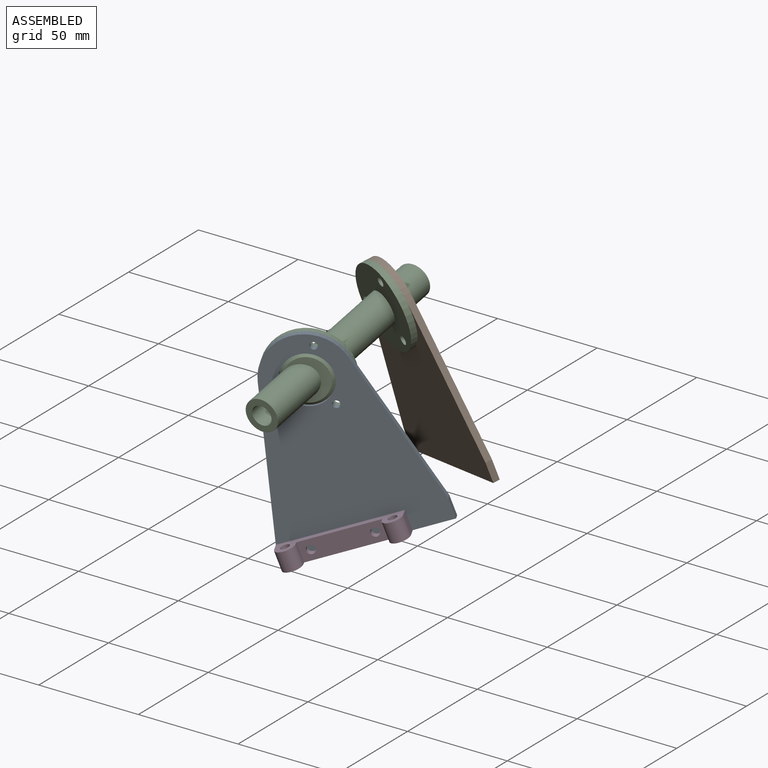
[diagram: assembled view]
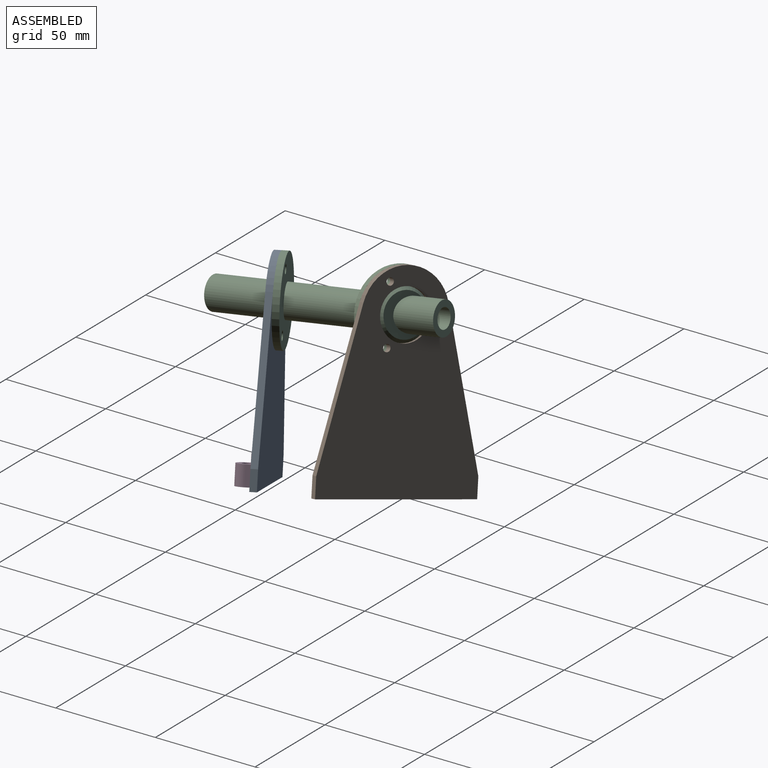
[diagram: assembled view, second angle]
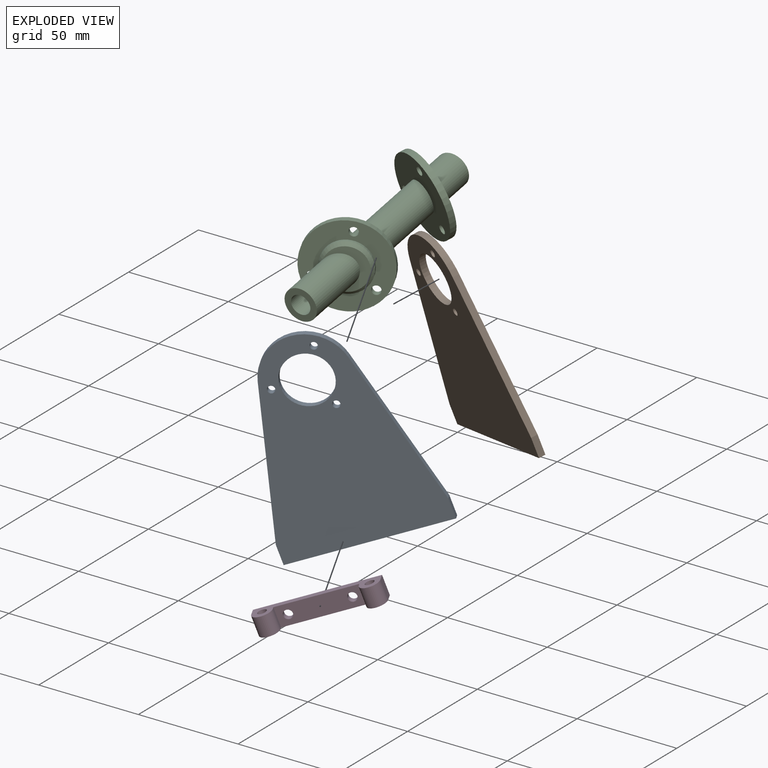
[diagram: exploded view]
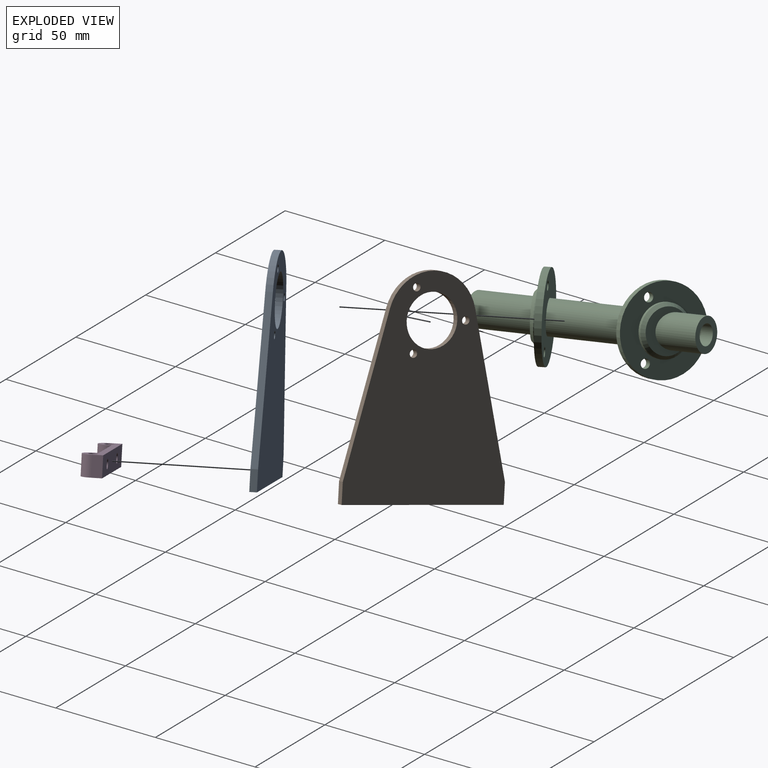
[diagram: exploded view, second angle]
ASSEMBLY  parts=4 mates=8
PART A: 12 faces, bbox 76.2x96.8x3.2 mm
  f0: plane 76.2x3.18mm, normal (0,-1,0), area 241.9mm2, adj f1,f8,f10,f11
  f1: plane 9.53x3.18mm, normal (1,0,0), area 30.2mm2, adj f0,f2,f10,f11
  f2: plane 71.72x18.09mm, normal (0.97,0.24,0), area 234.8mm2, adj f1,f3,f10,f11
  f3: cylinder r=20.64mm len=40.02mm, axis (0,0,-1), area 173.5mm2, adj f2,f4,f10,f11
  f4: plane 71.72x18.09mm, normal (-0.97,0.24,0), area 234.8mm2, adj f3,f8,f10,f11
  f5: cylinder r=1.73mm len=3.45mm, axis (0,0,-1), area 34.5mm2, adj f10,f11
  f6: cylinder r=1.73mm len=3.45mm, axis (0,0,-1), area 34.5mm2, adj f10,f11
  f7: cylinder r=1.73mm len=3.45mm, axis (0,0,-1), area 34.5mm2, adj f10,f11
  f8: plane 9.53x3.18mm, normal (-1,0,0), area 30.2mm2, adj f0,f4,f10,f11
  f9: cylinder r=11.91mm len=23.81mm, axis (0,0,-1), area 237.5mm2, adj f10,f11
  f10: plane 96.84x76.2mm, normal (0,0,1), area 4883mm2, adj f0,f1,f2,f3,f4,f5,f6,f7
  f11: plane 96.84x76.2mm, normal (0,0,-1), area 4883mm2, adj f0,f1,f2,f3,f4,f5,f6,f7
PART B: same geometry as A
PART C: 24 faces, bbox 40x116x42.9 mm
  f0: plane 41.28x36.92mm, normal (0.45,-0.89,0), area 849mm2, adj f1,f3,f4,f5,f15
  f1: cylinder r=20.64mm len=41.28mm, axis (-0.45,0.89,0), area 411.7mm2, adj f0,f2
  f2: plane 42.94x38.59mm, normal (-0.45,0.89,0), area 1073.1mm2, adj f1,f3,f4,f5,f9
  f3: cylinder r=2.15mm len=5.27mm, axis (-0.45,0.89,0), area 42.9mm2, adj f0,f2
  f4: cylinder r=2.15mm len=5.27mm, axis (-0.45,0.89,0), area 42.9mm2, adj f0,f2
  f5: cylinder r=2.15mm len=5.27mm, axis (-0.45,0.89,0), area 42.9mm2, adj f0,f2
  f6: cylinder r=20.64mm len=41.28mm, axis (-0.45,-0.89,0), area 411.7mm2, adj f7,f8
  f7: plane 41.28x36.92mm, normal (0.45,0.89,0), area 849mm2, adj f6,f10,f11,f12,f13
  f8: plane 41.28x36.92mm, normal (-0.45,-0.89,0), area 1073.1mm2, adj f6,f9,f10,f11,f12
  f9: cylinder r=7.94mm len=63.5mm, axis (0,1,0), area 2771.1mm2, adj f2,f8
  f10: cylinder r=2.15mm len=5.27mm, axis (-0.45,-0.89,0), area 42.9mm2, adj f7,f8
  f11: cylinder r=2.15mm len=5.27mm, axis (-0.45,-0.89,0), area 42.9mm2, adj f7,f8
  f12: cylinder r=2.15mm len=5.27mm, axis (-0.45,-0.89,0), area 42.9mm2, adj f7,f8
  f13: cylinder r=11.91mm len=23.81mm, axis (-0.45,-0.89,0), area 118.8mm2, adj f7,f22
  f14: plane 20.64x16.18mm, normal (0.45,0.89,0), area 130.6mm2, adj f19,f22
  f15: cylinder r=11.91mm len=23.81mm, axis (-0.45,0.89,0), area 118.8mm2, adj f0,f23
  f16: plane 20.64x16.18mm, normal (0.45,-0.89,0), area 130.6mm2, adj f18,f23
  f17: plane 15.88x15.88mm, normal (0,-1,0), area 126.7mm2, adj f18,f21
  f18: cylinder r=7.94mm len=32.61mm, axis (0,-1,0), area 1447.7mm2, adj f16,f17,f23
  f19: cylinder r=7.94mm len=19.91mm, axis (0,-1,0), area 814.4mm2, adj f14,f20,f22
  f20: plane 15.88x15.88mm, normal (0,1,0), area 126.7mm2, adj f19,f21
  f21: cylinder r=4.76mm len=114.3mm, axis (0,-1,0), area 3420.3mm2, adj f17,f20
  f22: cone r=10.32mm half-angle=45deg, axis (-0.45,-0.89,0), area 140.1mm2, adj f13,f14,f19
  f23: cone r=10.32mm half-angle=45deg, axis (-0.45,0.89,0), area 140.1mm2, adj f15,f16,f18
PART D: 14 faces, bbox 9.5x57.1x9.5 mm
  f0: plane 57.06x9.53mm, normal (1,0,0), area 514.4mm2, adj f1,f9,f10,f11,f12,f13
  f1: plane 9.53x4.76mm, normal (0,1,0), area 45.4mm2, adj f0,f2,f10,f11
  f2: cylinder r=4.76mm len=9.53mm, axis (0,0,-1), area 142.5mm2, adj f1,f3,f10,f11
  f3: plane 9.53x1.59mm, normal (0,-1,0), area 15.1mm2, adj f2,f4,f10,f11
  f4: plane 38.01x9.53mm, normal (-1,0,0), area 333mm2, adj f3,f5,f10,f11,f12,f13
  f5: plane 9.53x1.59mm, normal (0,1,0), area 15.1mm2, adj f4,f6,f10,f11
  f6: cylinder r=4.76mm len=9.53mm, axis (0,0,-1), area 142.5mm2, adj f5,f9,f10,f11
  f7: cylinder r=2.15mm len=9.53mm, axis (0,0,-1), area 128.8mm2, adj f10,f11
  f8: cylinder r=2.15mm len=9.53mm, axis (0,0,-1), area 128.8mm2, adj f10,f11
  f9: plane 9.53x4.76mm, normal (0,-1,0), area 45.4mm2, adj f0,f6,f10,f11
  f10: plane 57.06x9.53mm, normal (0,0,1), area 253.6mm2, adj f0,f1,f2,f3,f4,f5,f6,f7
  f11: plane 57.06x9.53mm, normal (0,0,-1), area 253.6mm2, adj f0,f1,f2,f3,f4,f5,f6,f7
  f12: cylinder r=2.15mm len=4.31mm, axis (-1,0,0), area 42.9mm2, adj f0,f4
  f13: cylinder r=2.15mm len=4.31mm, axis (-1,0,0), area 42.9mm2, adj f0,f4
PLACE A rot(axis=(0.28,-0.65,-0.71),175.4deg) t=(77.78,-47.42,129.36)mm
PLACE B rot(axis=(0.07,0.62,0.78),150.5deg) t=(74.89,15.93,138.73)mm
PLACE C rot(axis=(0.45,-0.89,0),20deg) t=(85.18,-50.91,122.75)mm
PLACE D rot(axis=(-0.11,-0.17,0.98),117.6deg) t=(79.21,-52.03,47.98)mm
MATE cylindrical B.f7 <-> C.f12  axis (-0.4,-0.87,-0.27) through (61.84,24.67,135.91)mm
MATE planar D.f0 <-> A.f11  axis (-0.45,0.89,0) through (91.6,-40.51,58.96)mm
MATE planar C.f1 <-> A.f10  axis (0.45,-0.89,0) through (76.36,-44.58,129.36)mm
MATE cylindrical A.f3 <-> C.f1  axis (0.45,-0.89,0) through (77.07,-46,129.36)mm
MATE planar D.f11 <-> A.f0  axis (0.31,0.15,-0.94) through (94.38,-42.44,54.49)mm
MATE planar D.f1 <-> A.f1  axis (-0.84,-0.42,-0.34) through (68.68,-54.63,49.2)mm
MATE planar B.f11 <-> C.f6  axis (-0.4,-0.87,-0.27) through (86.82,21.89,102.08)mm
MATE cylindrical B.f3 <-> C.f6  axis (-0.4,-0.87,-0.27) through (75.53,17.31,139.16)mm
